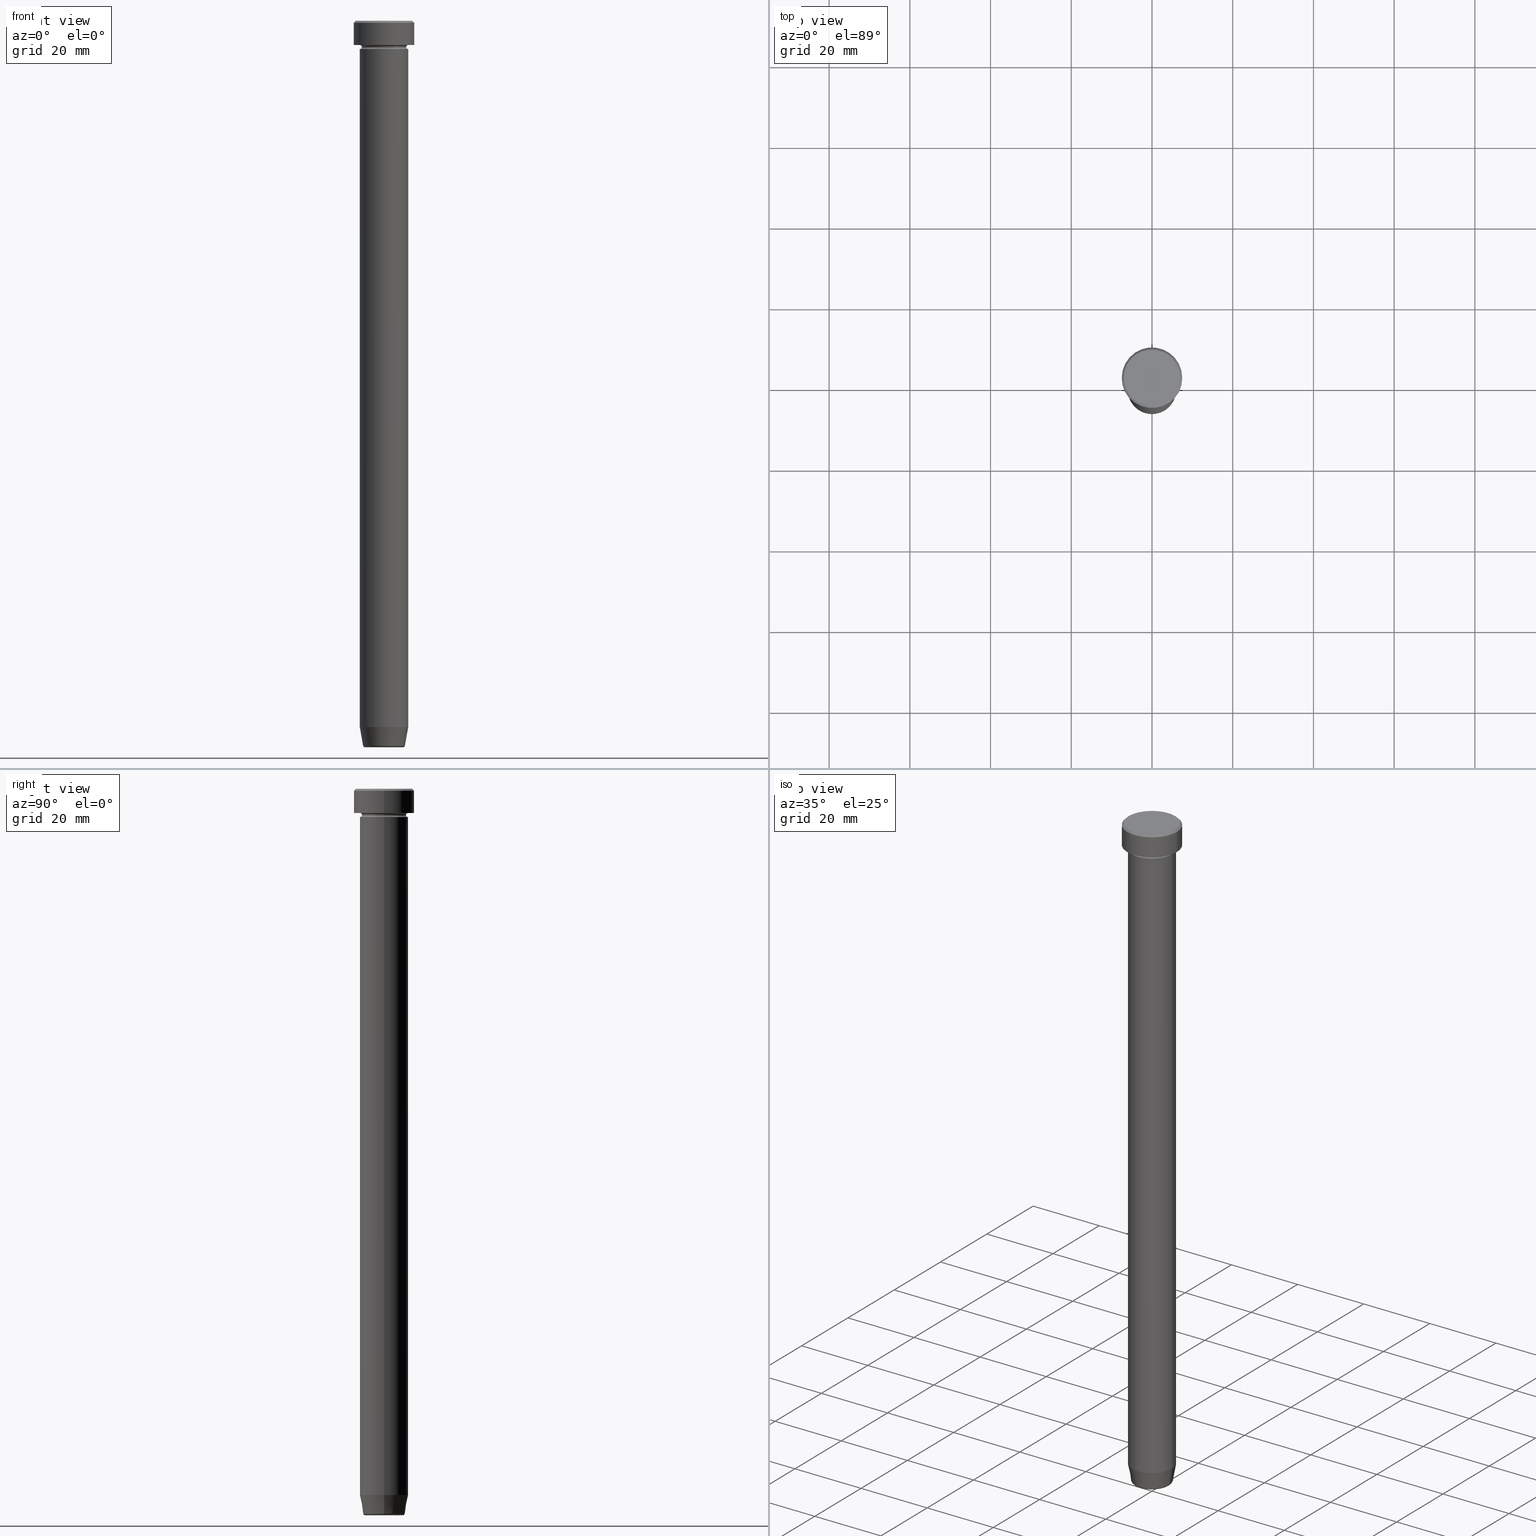
[diagram: canonical four-view strip — front | top / right | iso, engineering-drawing reading convention]
A machine part, canonical four-view strip (front | top / right | iso — engineering-drawing reading convention). The complete STEP part file that produces these views, byte-faithful:
ISO-10303-21;
HEADER;
FILE_DESCRIPTION (( 'STEP AP203' ),
    '1' );
FILE_NAME ('3bd2.STEP',
    '2024-01-02T23:21:57',
    ( '' ),
    ( '' ),
    'SwSTEP 2.0',
    'SolidWorks 2019',
    '' );
FILE_SCHEMA (( 'CONFIG_CONTROL_DESIGN' ));
ENDSEC;

DATA;
#1 = DIRECTION ( 'NONE',  ( -0.000000000000000000, -0.000000000000000000, 1.000000000000000000 ) ) ;
#2 = EDGE_CURVE ( 'NONE', #126, #315, #375, .T. ) ;
#3 = LINE ( 'NONE', #230, #365 ) ;
#4 = CIRCLE ( 'NONE', #185, 0.5000000000000004441 ) ;
#5 = CIRCLE ( 'NONE', #291, 0.5000000000000004441 ) ;
#6 = DESIGN_CONTEXT ( 'detailed design', #258, 'design' ) ;
#7 = EDGE_CURVE ( 'NONE', #586, #366, #269, .T. ) ;
#8 = DATE_AND_TIME ( #241, #360 ) ;
#9 = PLANE ( 'NONE',  #93 ) ;
#10 = CALENDAR_DATE ( 2024, 3, 1 ) ;
#11 = CIRCLE ( 'NONE', #522, 6.000000000000000000 ) ;
#12 = AXIS2_PLACEMENT_3D ( 'NONE', #530, #299, #489 ) ;
#13 = DIRECTION ( 'NONE',  ( 0.000000000000000000, -0.000000000000000000, 1.000000000000000000 ) ) ;
#14 = PERSON_AND_ORGANIZATION ( #302, #585 ) ;
#15 = APPROVAL_PERSON_ORGANIZATION ( #103, #143, #53 ) ;
#16 = ADVANCED_FACE ( 'NONE', ( #594, #117 ), #177, .T. ) ;
#17 = ORIENTED_EDGE ( 'NONE', *, *, #532, .T. ) ;
#18 = DIRECTION ( 'NONE',  ( -0.000000000000000000, -0.000000000000000000, 1.000000000000000000 ) ) ;
#19 = TOROIDAL_SURFACE ( 'NONE', #568, 6.000000000000000000, 0.5000000000000000000 ) ;
#20 = EDGE_LOOP ( 'NONE', ( #463, #416, #595, #207 ) ) ;
#21 = CARTESIAN_POINT ( 'NONE',  ( 0.000000000000000000, 0.000000000000000000, 0.000000000000000000 ) ) ;
#22 = ADVANCED_FACE ( 'NONE', ( #511 ), #329, .T. ) ;
#23 = DIRECTION ( 'NONE',  ( -1.000000000000000000, 0.000000000000000000, 0.000000000000000000 ) ) ;
#24 = LINE ( 'NONE', #316, #136 ) ;
#25 = CYLINDRICAL_SURFACE ( 'NONE', #313, 6.000000000000000000 ) ;
#26 = CARTESIAN_POINT ( 'NONE',  ( 0.000000000000000000, 0.000000000000000000, -179.5000000000000000 ) ) ;
#27 = VERTEX_POINT ( 'NONE', #234 ) ;
#28 = ORIENTED_EDGE ( 'NONE', *, *, #163, .F. ) ;
#29 = FACE_OUTER_BOUND ( 'NONE', #196, .T. ) ;
#30 = AXIS2_PLACEMENT_3D ( 'NONE', #105, #359, #345 ) ;
#31 = CARTESIAN_POINT ( 'NONE',  ( 7.000000000000001776, 8.572527594031474176E-16, 0.000000000000000000 ) ) ;
#32 = ORIENTED_EDGE ( 'NONE', *, *, #263, .T. ) ;
#33 = EDGE_LOOP ( 'NONE', ( #28, #311, #164, #599 ) ) ;
#34 = DIRECTION ( 'NONE',  ( 1.000000000000000000, 0.000000000000000000, 0.000000000000000000 ) ) ;
#35 = EDGE_CURVE ( 'NONE', #132, #66, #183, .T. ) ;
#36 = ORIENTED_EDGE ( 'NONE', *, *, #352, .F. ) ;
#37 = EDGE_LOOP ( 'NONE', ( #581, #81, #223, #134 ) ) ;
#38 =( GEOMETRIC_REPRESENTATION_CONTEXT ( 3 ) GLOBAL_UNCERTAINTY_ASSIGNED_CONTEXT ( ( #184 ) ) GLOBAL_UNIT_ASSIGNED_CONTEXT ( ( #491, #592, #461 ) ) REPRESENTATION_CONTEXT ( 'NONE', 'WORKASPACE' ) );
#39 = DIRECTION ( 'NONE',  ( 1.000000000000000000, 0.000000000000000000, 0.000000000000000000 ) ) ;
#40 = CC_DESIGN_PERSON_AND_ORGANIZATION_ASSIGNMENT ( #342, #138, ( #206 ) ) ;
#41 = ORIENTED_EDGE ( 'NONE', *, *, #346, .F. ) ;
#42 = EDGE_LOOP ( 'NONE', ( #32, #266, #128, #420 ) ) ;
#43 = CLOSED_SHELL ( 'NONE', ( #553, #156, #257, #496, #394, #417, #106, #306, #16, #488, #327, #447, #101 ) ) ;
#44 = AXIS2_PLACEMENT_3D ( 'NONE', #434, #471, #150 ) ;
#45 = ORIENTED_EDGE ( 'NONE', *, *, #263, .F. ) ;
#46 = DIRECTION ( 'NONE',  ( 1.000000000000000000, 0.000000000000000000, 0.000000000000000000 ) ) ;
#47 = ADVANCED_FACE ( 'NONE', ( #554 ), #211, .T. ) ;
#48 = VERTEX_POINT ( 'NONE', #383 ) ;
#49 = DIRECTION ( 'NONE',  ( 0.000000000000000000, -0.000000000000000000, 1.000000000000000000 ) ) ;
#50 = DIRECTION ( 'NONE',  ( -0.000000000000000000, -0.000000000000000000, 1.000000000000000000 ) ) ;
#51 = AXIS2_PLACEMENT_3D ( 'NONE', #165, #203, #118 ) ;
#52 = DIRECTION ( 'NONE',  ( 0.000000000000000000, 0.000000000000000000, -1.000000000000000000 ) ) ;
#53 = APPROVAL_ROLE ( '' ) ;
#54 = AXIS2_PLACEMENT_3D ( 'NONE', #131, #408, #168 ) ;
#55 = TOROIDAL_SURFACE ( 'NONE', #83, 6.000000000000000000, 0.5000000000000000000 ) ;
#56 = LINE ( 'NONE', #64, #469 ) ;
#57 = DATE_AND_TIME ( #60, #169 ) ;
#58 = ADVANCED_FACE ( 'NONE', ( #466 ), #431, .T. ) ;
#59 = DIRECTION ( 'NONE',  ( 1.000000000000000000, 0.000000000000000000, 0.000000000000000000 ) ) ;
#60 = CALENDAR_DATE ( 2024, 3, 1 ) ;
#61 = DIRECTION ( 'NONE',  ( 1.000000000000000000, 0.000000000000000000, 0.000000000000000000 ) ) ;
#62 = ORIENTED_EDGE ( 'NONE', *, *, #112, .F. ) ;
#63 = APPROVAL_STATUS ( 'not_yet_approved' ) ;
#64 = CARTESIAN_POINT ( 'NONE',  ( -6.000000000000000000, 7.347880794884119736E-16, 0.000000000000000000 ) ) ;
#65 = VECTOR ( 'NONE', #410, 999.9999999999998863 ) ;
#66 = VERTEX_POINT ( 'NONE', #137 ) ;
#67 = EDGE_CURVE ( 'NONE', #318, #217, #4, .T. ) ;
#68 = DIRECTION ( 'NONE',  ( -0.000000000000000000, -0.000000000000000000, 1.000000000000000000 ) ) ;
#69 = DIRECTION ( 'NONE',  ( -0.000000000000000000, -0.000000000000000000, 1.000000000000000000 ) ) ;
#70 = ORIENTED_EDGE ( 'NONE', *, *, #559, .T. ) ;
#71 = CARTESIAN_POINT ( 'NONE',  ( 0.000000000000000000, 0.000000000000000000, -0.4999999999999987232 ) ) ;
#72 = CC_DESIGN_APPROVAL ( #396, ( #206 ) ) ;
#73 = DIRECTION ( 'NONE',  ( -0.000000000000000000, -0.000000000000000000, 1.000000000000000000 ) ) ;
#74 = EDGE_CURVE ( 'NONE', #479, #217, #11, .T. ) ;
#75 = AXIS2_PLACEMENT_3D ( 'NONE', #21, #481, #446 ) ;
#76 = CARTESIAN_POINT ( 'NONE',  ( 6.000000000000000000, 7.347880794884119736E-16, -6.000000000000000000 ) ) ;
#77 = DIRECTION ( 'NONE',  ( 1.000000000000000000, 0.000000000000000000, 0.000000000000000000 ) ) ;
#78 = CARTESIAN_POINT ( 'NONE',  ( 0.000000000000000000, 0.000000000000000000, -17.00000000000000000 ) ) ;
#79 = CIRCLE ( 'NONE', #482, 7.000000000000001776 ) ;
#80 = CARTESIAN_POINT ( 'NONE',  ( 0.000000000000000000, 0.000000000000000000, -6.000000000000000000 ) ) ;
#81 = ORIENTED_EDGE ( 'NONE', *, *, #163, .T. ) ;
#82 = ORIENTED_EDGE ( 'NONE', *, *, #474, .F. ) ;
#83 = AXIS2_PLACEMENT_3D ( 'NONE', #367, #139, #289 ) ;
#84 = EDGE_CURVE ( 'NONE', #366, #479, #56, .T. ) ;
#85 = DIRECTION ( 'NONE',  ( -1.000000000000000000, 1.224646799147351482E-16, 0.000000000000000000 ) ) ;
#86 = EDGE_LOOP ( 'NONE', ( #419, #428, #441, #89 ) ) ;
#87 = CARTESIAN_POINT ( 'NONE',  ( 6.000000000000000000, 0.000000000000000000, 0.000000000000000000 ) ) ;
#88 = EDGE_LOOP ( 'NONE', ( #539, #235, #172, #173 ) ) ;
#89 = ORIENTED_EDGE ( 'NONE', *, *, #319, .F. ) ;
#90 = EDGE_CURVE ( 'NONE', #122, #318, #542, .T. ) ;
#91 = ORIENTED_EDGE ( 'NONE', *, *, #191, .T. ) ;
#92 = EDGE_LOOP ( 'NONE', ( #438, #181, #285, #580 ) ) ;
#93 = AXIS2_PLACEMENT_3D ( 'NONE', #252, #298, #144 ) ;
#94 = ORIENTED_EDGE ( 'NONE', *, *, #35, .T. ) ;
#95 = DIRECTION ( 'NONE',  ( 0.000000000000000000, -1.000000000000000000, 0.000000000000000000 ) ) ;
#96 = APPROVAL_DATE_TIME ( #57, #200 ) ;
#97 = DIRECTION ( 'NONE',  ( -0.000000000000000000, -0.000000000000000000, 1.000000000000000000 ) ) ;
#98 = CIRCLE ( 'NONE', #51, 5.500000000000000000 ) ;
#99 = DIRECTION ( 'NONE',  ( 1.000000000000000000, 0.000000000000000000, 0.000000000000000000 ) ) ;
#100 = DIRECTION ( 'NONE',  ( 1.000000000000000000, 0.000000000000000000, 0.000000000000000000 ) ) ;
#101 = ADVANCED_FACE ( 'NONE', ( #583 ), #271, .T. ) ;
#102 = AXIS2_PLACEMENT_3D ( 'NONE', #475, #262, #442 ) ;
#103 = PERSON_AND_ORGANIZATION ( #302, #585 ) ;
#104 = DIRECTION ( 'NONE',  ( -0.000000000000000000, -0.000000000000000000, 1.000000000000000000 ) ) ;
#105 = CARTESIAN_POINT ( 'NONE',  ( -6.000000000000000000, 7.347880794884119736E-16, -6.500000000000000888 ) ) ;
#106 = ADVANCED_FACE ( 'NONE', ( #162 ), #435, .T. ) ;
#107 = PERSON_AND_ORGANIZATION ( #302, #585 ) ;
#108 = VECTOR ( 'NONE', #425, 1000.000000000000114 ) ;
#109 = DIRECTION ( 'NONE',  ( -0.000000000000000000, -0.000000000000000000, 1.000000000000000000 ) ) ;
#110 = AXIS2_PLACEMENT_3D ( 'NONE', #80, #268, #398 ) ;
#111 = FACE_OUTER_BOUND ( 'NONE', #521, .T. ) ;
#112 = EDGE_CURVE ( 'NONE', #393, #48, #24, .T. ) ;
#113 = CARTESIAN_POINT ( 'NONE',  ( 0.000000000000000000, 0.000000000000000000, 0.000000000000000000 ) ) ;
#114 = AXIS2_PLACEMENT_3D ( 'NONE', #353, #256, #23 ) ;
#115 = CARTESIAN_POINT ( 'NONE',  ( 0.000000000000000000, 0.000000000000000000, -180.0000000000000000 ) ) ;
#116 = DIRECTION ( 'NONE',  ( 1.000000000000000000, 0.000000000000000000, 0.000000000000000000 ) ) ;
#117 = FACE_OUTER_BOUND ( 'NONE', #373, .T. ) ;
#118 = DIRECTION ( 'NONE',  ( 1.000000000000000000, 0.000000000000000000, 0.000000000000000000 ) ) ;
#119 = MANIFOLD_SOLID_BREP ( 'Zaoblit4', #401 ) ;
#120 = CARTESIAN_POINT ( 'NONE',  ( -5.191219157375138060, 6.852645359818000008E-16, -179.5868240888334526 ) ) ;
#121 = EDGE_CURVE ( 'NONE', #544, #538, #517, .T. ) ;
#122 = VERTEX_POINT ( 'NONE', #478 ) ;
#123 = DIRECTION ( 'NONE',  ( 1.000000000000000000, 0.000000000000000000, 0.000000000000000000 ) ) ;
#124 = DIRECTION ( 'NONE',  ( 1.224646799147353207E-16, 1.000000000000000000, 0.000000000000000000 ) ) ;
#125 = EDGE_LOOP ( 'NONE', ( #409, #500, #450, #253 ) ) ;
#126 = VERTEX_POINT ( 'NONE', #120 ) ;
#127 = PRODUCT ( '3bd2', '3bd2', '', ( #464 ) ) ;
#128 = ORIENTED_EDGE ( 'NONE', *, *, #209, .T. ) ;
#129 = CARTESIAN_POINT ( 'NONE',  ( -6.000000000000000000, 7.347880794884119736E-16, -175.0000000000000000 ) ) ;
#130 = EDGE_CURVE ( 'NONE', #366, #586, #331, .T. ) ;
#131 = CARTESIAN_POINT ( 'NONE',  ( 0.000000000000000000, 0.000000000000000000, -179.5868240888334526 ) ) ;
#132 = VERTEX_POINT ( 'NONE', #492 ) ;
#133 = CARTESIAN_POINT ( 'NONE',  ( 6.000000000000000000, 0.000000000000000000, -6.500000000000000888 ) ) ;
#134 = ORIENTED_EDGE ( 'NONE', *, *, #67, .F. ) ;
#135 = DIRECTION ( 'NONE',  ( -0.000000000000000000, -0.000000000000000000, 1.000000000000000000 ) ) ;
#136 = VECTOR ( 'NONE', #265, 1000.000000000000000 ) ;
#137 = CARTESIAN_POINT ( 'NONE',  ( -7.500000000000000000, 9.184850993605147944E-16, -0.4999999999999987232 ) ) ;
#138 = PERSON_AND_ORGANIZATION_ROLE ( 'design_supplier' ) ;
#139 = DIRECTION ( 'NONE',  ( -0.000000000000000000, -0.000000000000000000, 1.000000000000000000 ) ) ;
#140 = EDGE_CURVE ( 'NONE', #324, #48, #529, .T. ) ;
#141 = LOCAL_TIME ( 0, 21, 57.00000000000000000, #238 ) ;
#142 = COORDINATED_UNIVERSAL_TIME_OFFSET ( 1, 0, .AHEAD. ) ;
#143 = APPROVAL ( #194, 'NEUR�EN�' ) ;
#144 = DIRECTION ( 'NONE',  ( -1.000000000000000000, 0.000000000000000000, -0.000000000000000000 ) ) ;
#145 = CIRCLE ( 'NONE', #192, 0.5000000000000004441 ) ;
#146 = APPROVAL_STATUS ( 'not_yet_approved' ) ;
#147 = EDGE_CURVE ( 'NONE', #460, #212, #415, .T. ) ;
#148 = DIRECTION ( 'NONE',  ( -1.000000000000000000, 0.000000000000000000, 0.000000000000000000 ) ) ;
#149 = CALENDAR_DATE ( 2024, 3, 1 ) ;
#150 = DIRECTION ( 'NONE',  ( 1.000000000000000000, 0.000000000000000000, 0.000000000000000000 ) ) ;
#151 = LOCAL_TIME ( 0, 21, 57.00000000000000000, #142 ) ;
#152 = DIRECTION ( 'NONE',  ( 1.000000000000000000, 0.000000000000000000, 0.000000000000000000 ) ) ;
#153 = AXIS2_PLACEMENT_3D ( 'NONE', #560, #193, #550 ) ;
#154 = AXIS2_PLACEMENT_3D ( 'NONE', #578, #444, #34 ) ;
#155 = ORIENTED_EDGE ( 'NONE', *, *, #147, .F. ) ;
#156 = ADVANCED_FACE ( 'NONE', ( #574 ), #543, .F. ) ;
#157 = FACE_OUTER_BOUND ( 'NONE', #490, .T. ) ;
#158 = CARTESIAN_POINT ( 'NONE',  ( 7.000000000000001776, 8.878689293818310074E-16, 0.000000000000000000 ) ) ;
#159 = DIRECTION ( 'NONE',  ( 0.000000000000000000, 0.000000000000000000, -1.000000000000000000 ) ) ;
#160 = CIRCLE ( 'NONE', #340, 5.191219157375138060 ) ;
#161 = CARTESIAN_POINT ( 'NONE',  ( 0.000000000000000000, 0.000000000000000000, -17.00000000000000000 ) ) ;
#162 = FACE_OUTER_BOUND ( 'NONE', #349, .T. ) ;
#163 = EDGE_CURVE ( 'NONE', #122, #479, #239, .T. ) ;
#164 = ORIENTED_EDGE ( 'NONE', *, *, #67, .T. ) ;
#165 = CARTESIAN_POINT ( 'NONE',  ( 0.000000000000000000, 0.000000000000000000, -6.500000000000000888 ) ) ;
#166 = CARTESIAN_POINT ( 'NONE',  ( -7.500000000000000000, 9.184850993605147944E-16, 0.000000000000000000 ) ) ;
#167 = AXIS2_PLACEMENT_3D ( 'NONE', #113, #528, #486 ) ;
#168 = DIRECTION ( 'NONE',  ( -1.000000000000000000, 0.000000000000000000, 0.000000000000000000 ) ) ;
#169 = LOCAL_TIME ( 0, 21, 57.00000000000000000, #513 ) ;
#170 = DIRECTION ( 'NONE',  ( 1.000000000000000000, 0.000000000000000000, 0.000000000000000000 ) ) ;
#171 = LINE ( 'NONE', #186, #65 ) ;
#172 = ORIENTED_EDGE ( 'NONE', *, *, #483, .T. ) ;
#173 = ORIENTED_EDGE ( 'NONE', *, *, #433, .T. ) ;
#174 = EDGE_CURVE ( 'NONE', #314, #126, #5, .T. ) ;
#175 = VECTOR ( 'NONE', #219, 999.9999999999998863 ) ;
#176 = CARTESIAN_POINT ( 'NONE',  ( 5.191219157375138060, 0.000000000000000000, -179.5868240888334526 ) ) ;
#177 = PLANE ( 'NONE',  #279 ) ;
#178 = ORIENTED_EDGE ( 'NONE', *, *, #474, .T. ) ;
#179 = DIRECTION ( 'NONE',  ( 0.000000000000000000, 0.000000000000000000, -1.000000000000000000 ) ) ;
#180 = ORIENTED_EDGE ( 'NONE', *, *, #407, .F. ) ;
#181 = ORIENTED_EDGE ( 'NONE', *, *, #121, .T. ) ;
#182 = FACE_OUTER_BOUND ( 'NONE', #33, .T. ) ;
#183 = LINE ( 'NONE', #472, #108 ) ;
#184 = UNCERTAINTY_MEASURE_WITH_UNIT (LENGTH_MEASURE( 1.000000000000000082E-05 ), #491, 'distance_accuracy_value', 'NONE');
#185 = AXIS2_PLACEMENT_3D ( 'NONE', #133, #334, #52 ) ;
#186 = CARTESIAN_POINT ( 'NONE',  ( -5.118365096457672792, 6.268189432244423169E-16, -180.0000000000000000 ) ) ;
#187 = CIRCLE ( 'NONE', #392, 7.500000000000000000 ) ;
#188 = CC_DESIGN_PERSON_AND_ORGANIZATION_ASSIGNMENT ( #224, #228, ( #127 ) ) ;
#189 = CARTESIAN_POINT ( 'NONE',  ( 0.000000000000000000, 0.000000000000000000, -7.000000000000000000 ) ) ;
#190 = DATE_TIME_ROLE ( 'creation_date' ) ;
#191 = EDGE_CURVE ( 'NONE', #534, #314, #470, .T. ) ;
#192 = AXIS2_PLACEMENT_3D ( 'NONE', #597, #288, #179 ) ;
#193 = DIRECTION ( 'NONE',  ( -0.000000000000000000, -0.000000000000000000, 1.000000000000000000 ) ) ;
#194 = APPROVAL_STATUS ( 'not_yet_approved' ) ;
#195 = DIRECTION ( 'NONE',  ( -0.000000000000000000, -0.000000000000000000, 1.000000000000000000 ) ) ;
#196 = EDGE_LOOP ( 'NONE', ( #300, #214, #36, #404 ) ) ;
#197 = APPLICATION_PROTOCOL_DEFINITION ( 'international standard', 'config_control_design', 1994, #258 ) ;
#198 = DIRECTION ( 'NONE',  ( -0.000000000000000000, -0.000000000000000000, 1.000000000000000000 ) ) ;
#199 = AXIS2_PLACEMENT_3D ( 'NONE', #354, #537, #520 ) ;
#200 = APPROVAL ( #63, 'NEUR�EN�' ) ;
#201 = ORIENTED_EDGE ( 'NONE', *, *, #371, .F. ) ;
#202 = ORIENTED_EDGE ( 'NONE', *, *, #515, .T. ) ;
#203 = DIRECTION ( 'NONE',  ( -0.000000000000000000, -0.000000000000000000, 1.000000000000000000 ) ) ;
#204 = DIRECTION ( 'NONE',  ( -0.000000000000000000, -0.000000000000000000, 1.000000000000000000 ) ) ;
#205 = CARTESIAN_POINT ( 'NONE',  ( 0.000000000000000000, 0.000000000000000000, 0.000000000000000000 ) ) ;
#206 = PRODUCT_DEFINITION_FORMATION_WITH_SPECIFIED_SOURCE ( 'LIBOVOLN�', '', #127, .NOT_KNOWN. ) ;
#207 = ORIENTED_EDGE ( 'NONE', *, *, #292, .F. ) ;
#208 = CARTESIAN_POINT ( 'NONE',  ( 7.500000000000000000, 0.000000000000000000, -6.000000000000000000 ) ) ;
#209 = EDGE_CURVE ( 'NONE', #66, #538, #385, .T. ) ;
#210 = CARTESIAN_POINT ( 'NONE',  ( -6.000000000000000000, 0.000000000000000000, -6.000000000000000000 ) ) ;
#211 = CONICAL_SURFACE ( 'NONE', #551, 5.118365096457672792, 0.1745329251994331976 ) ;
#212 = VERTEX_POINT ( 'NONE', #210 ) ;
#213 = AXIS2_PLACEMENT_3D ( 'NONE', #388, #159, #565 ) ;
#214 = ORIENTED_EDGE ( 'NONE', *, *, #275, .T. ) ;
#215 = DIRECTION ( 'NONE',  ( -1.000000000000000000, 0.000000000000000000, 0.000000000000000000 ) ) ;
#216 = ORIENTED_EDGE ( 'NONE', *, *, #433, .F. ) ;
#217 = VERTEX_POINT ( 'NONE', #448 ) ;
#218 = CARTESIAN_POINT ( 'NONE',  ( 6.000000000000000000, 0.000000000000000000, -17.00000000000000000 ) ) ;
#219 = DIRECTION ( 'NONE',  ( 0.1736481776669306087, 0.000000000000000000, 0.9848077530122081313 ) ) ;
#220 = CIRCLE ( 'NONE', #437, 0.5000000000000004441 ) ;
#221 = ADVANCED_FACE ( 'NONE', ( #310 ), #501, .T. ) ;
#222 = ORIENTED_EDGE ( 'NONE', *, *, #362, .T. ) ;
#223 = ORIENTED_EDGE ( 'NONE', *, *, #74, .T. ) ;
#224 = PERSON_AND_ORGANIZATION ( #302, #585 ) ;
#225 = DIRECTION ( 'NONE',  ( -0.000000000000000000, -0.000000000000000000, 1.000000000000000000 ) ) ;
#226 = DIRECTION ( 'NONE',  ( -0.000000000000000000, -0.000000000000000000, 1.000000000000000000 ) ) ;
#227 = ORIENTED_EDGE ( 'NONE', *, *, #2, .T. ) ;
#228 = PERSON_AND_ORGANIZATION_ROLE ( 'design_owner' ) ;
#229 = AXIS2_PLACEMENT_3D ( 'NONE', #26, #69, #406 ) ;
#230 = CARTESIAN_POINT ( 'NONE',  ( 6.000000000000000000, 0.000000000000000000, 0.000000000000000000 ) ) ;
#231 = ORIENTED_EDGE ( 'NONE', *, *, #7, .F. ) ;
#232 = CARTESIAN_POINT ( 'NONE',  ( -7.500000000000000000, 9.184850993605147944E-16, -6.000000000000000000 ) ) ;
#233 = CARTESIAN_POINT ( 'NONE',  ( 6.000000000000000000, 0.000000000000000000, -17.00000000000000000 ) ) ;
#234 = CARTESIAN_POINT ( 'NONE',  ( 6.000000000000000000, 0.000000000000000000, -175.0000000000000000 ) ) ;
#235 = ORIENTED_EDGE ( 'NONE', *, *, #407, .T. ) ;
#236 = DIRECTION ( 'NONE',  ( 1.000000000000000000, 0.000000000000000000, 0.000000000000000000 ) ) ;
#237 = EDGE_CURVE ( 'NONE', #567, #66, #386, .T. ) ;
#238 = COORDINATED_UNIVERSAL_TIME_OFFSET ( 1, 0, .AHEAD. ) ;
#239 = CIRCLE ( 'NONE', #30, 0.5000000000000004441 ) ;
#240 = PRODUCT_RELATED_PRODUCT_CATEGORY ( 'detail', '', ( #127 ) ) ;
#241 = CALENDAR_DATE ( 2024, 3, 1 ) ;
#242 = DIRECTION ( 'NONE',  ( -0.000000000000000000, -0.000000000000000000, 1.000000000000000000 ) ) ;
#243 = ADVANCED_FACE ( 'NONE', ( #562 ), #296, .F. ) ;
#244 = CARTESIAN_POINT ( 'NONE',  ( 0.000000000000000000, 0.000000000000000000, -180.0000000000000000 ) ) ;
#245 = SECURITY_CLASSIFICATION_LEVEL ( 'unclassified' ) ;
#246 = CC_DESIGN_PERSON_AND_ORGANIZATION_ASSIGNMENT ( #518, #504, ( #206 ) ) ;
#247 = CARTESIAN_POINT ( 'NONE',  ( 0.000000000000000000, 0.000000000000000000, 0.000000000000000000 ) ) ;
#248 = CIRCLE ( 'NONE', #75, 7.000000000000001776 ) ;
#249 = CARTESIAN_POINT ( 'NONE',  ( 0.000000000000000000, 0.000000000000000000, -6.500000000000000888 ) ) ;
#250 = ORIENTED_EDGE ( 'NONE', *, *, #130, .F. ) ;
#251 = DATE_AND_TIME ( #149, #372 ) ;
#252 = CARTESIAN_POINT ( 'NONE',  ( 0.000000000000000000, 6.000000000000000000, -17.00000000000000000 ) ) ;
#253 = ORIENTED_EDGE ( 'NONE', *, *, #2, .F. ) ;
#254 = APPROVAL_PERSON_ORGANIZATION ( #378, #200, #335 ) ;
#255 = ORIENTED_EDGE ( 'NONE', *, *, #573, .T. ) ;
#256 = DIRECTION ( 'NONE',  ( 0.000000000000000000, 0.000000000000000000, -1.000000000000000000 ) ) ;
#257 = ADVANCED_FACE ( 'NONE', ( #320 ), #19, .F. ) ;
#258 = APPLICATION_CONTEXT ( 'configuration controlled 3d designs of mechanical parts and assemblies' ) ;
#259 = FACE_OUTER_BOUND ( 'NONE', #92, .T. ) ;
#260 = AXIS2_PLACEMENT_3D ( 'NONE', #274, #225, #545 ) ;
#261 = DIRECTION ( 'NONE',  ( 1.000000000000000000, 0.000000000000000000, 0.000000000000000000 ) ) ;
#262 = DIRECTION ( 'NONE',  ( 0.000000000000000000, 0.000000000000000000, -1.000000000000000000 ) ) ;
#263 = EDGE_CURVE ( 'NONE', #452, #567, #477, .T. ) ;
#264 = DIRECTION ( 'NONE',  ( 1.000000000000000000, 0.000000000000000000, 0.000000000000000000 ) ) ;
#265 = DIRECTION ( 'NONE',  ( -0.000000000000000000, -0.000000000000000000, 1.000000000000000000 ) ) ;
#266 = ORIENTED_EDGE ( 'NONE', *, *, #237, .T. ) ;
#267 = DIRECTION ( 'NONE',  ( 0.000000000000000000, 0.000000000000000000, -1.000000000000000000 ) ) ;
#268 = DIRECTION ( 'NONE',  ( -0.000000000000000000, -0.000000000000000000, 1.000000000000000000 ) ) ;
#269 = CIRCLE ( 'NONE', #476, 6.000000000000000000 ) ;
#270 = ORIENTED_EDGE ( 'NONE', *, *, #387, .T. ) ;
#271 = CONICAL_SURFACE ( 'NONE', #432, 7.000000000000001776, 0.7853981633974473908 ) ;
#272 = CARTESIAN_POINT ( 'NONE',  ( 0.000000000000000000, 0.000000000000000000, 0.000000000000000000 ) ) ;
#273 = EDGE_LOOP ( 'NONE', ( #563, #524, #94, #216 ) ) ;
#274 = CARTESIAN_POINT ( 'NONE',  ( 0.000000000000000000, 0.000000000000000000, -6.000000000000000000 ) ) ;
#275 = EDGE_CURVE ( 'NONE', #126, #393, #171, .T. ) ;
#276 = ORIENTED_EDGE ( 'NONE', *, *, #275, .F. ) ;
#277 = CARTESIAN_POINT ( 'NONE',  ( 0.000000000000000000, 0.000000000000000000, -6.000000000000000000 ) ) ;
#278 = ORIENTED_EDGE ( 'NONE', *, *, #292, .T. ) ;
#279 = AXIS2_PLACEMENT_3D ( 'NONE', #598, #368, #546 ) ;
#280 = ORIENTED_EDGE ( 'NONE', *, *, #130, .T. ) ;
#281 = CIRCLE ( 'NONE', #44, 7.500000000000000000 ) ;
#282 = DIRECTION ( 'NONE',  ( -1.000000000000000000, -1.224646799147351482E-16, 0.000000000000000000 ) ) ;
#283 = DIRECTION ( 'NONE',  ( -0.000000000000000000, -0.000000000000000000, 1.000000000000000000 ) ) ;
#284 = CONICAL_SURFACE ( 'NONE', #514, 5.118365096457672792, 0.1745329251994331976 ) ;
#285 = ORIENTED_EDGE ( 'NONE', *, *, #209, .F. ) ;
#286 = CARTESIAN_POINT ( 'NONE',  ( 0.000000000000000000, 1.592040838891559450E-14, -180.0000000000000000 ) ) ;
#287 = EDGE_CURVE ( 'NONE', #217, #479, #561, .T. ) ;
#288 = DIRECTION ( 'NONE',  ( -0.000000000000000000, -1.000000000000000000, -0.000000000000000000 ) ) ;
#289 = DIRECTION ( 'NONE',  ( 1.000000000000000000, 0.000000000000000000, 0.000000000000000000 ) ) ;
#290 = AXIS2_PLACEMENT_3D ( 'NONE', #249, #356, #343 ) ;
#291 = AXIS2_PLACEMENT_3D ( 'NONE', #400, #124, #85 ) ;
#292 = EDGE_CURVE ( 'NONE', #586, #217, #3, .T. ) ;
#293 = CARTESIAN_POINT ( 'NONE',  ( 0.000000000000000000, 0.000000000000000000, -179.5000000000000000 ) ) ;
#294 = CALENDAR_DATE ( 2024, 3, 1 ) ;
#295 = CC_DESIGN_APPROVAL ( #143, ( #422 ) ) ;
#296 = PLANE ( 'NONE',  #102 ) ;
#297 = SHAPE_DEFINITION_REPRESENTATION ( #423, #509 ) ;
#298 = DIRECTION ( 'NONE',  ( 0.000000000000000000, 0.000000000000000000, -1.000000000000000000 ) ) ;
#299 = DIRECTION ( 'NONE',  ( 0.000000000000000000, 0.000000000000000000, -1.000000000000000000 ) ) ;
#300 = ORIENTED_EDGE ( 'NONE', *, *, #427, .T. ) ;
#301 = EDGE_CURVE ( 'NONE', #122, #212, #145, .T. ) ;
#302 = PERSON ( 'NEUR�EN�', 'NEUR�EN�', 'NEUR�EN�', ('NEUR�EN�'), ('NEUR�EN�'), ('NEUR�EN�') ) ;
#303 = DIRECTION ( 'NONE',  ( 0.000000000000000000, 0.000000000000000000, -1.000000000000000000 ) ) ;
#304 = AXIS2_PLACEMENT_3D ( 'NONE', #391, #569, #77 ) ;
#305 = LINE ( 'NONE', #571, #348 ) ;
#306 = ADVANCED_FACE ( 'NONE', ( #370 ), #462, .T. ) ;
#307 = CIRCLE ( 'NONE', #260, 6.000000000000000000 ) ;
#308 = EDGE_LOOP ( 'NONE', ( #62, #323, #369, #82 ) ) ;
#309 = CYLINDRICAL_SURFACE ( 'NONE', #557, 6.000000000000000000 ) ;
#310 = FACE_OUTER_BOUND ( 'NONE', #86, .T. ) ;
#311 = ORIENTED_EDGE ( 'NONE', *, *, #532, .F. ) ;
#312 = CARTESIAN_POINT ( 'NONE',  ( 7.500000000000000000, 0.000000000000000000, -0.4999999999999987232 ) ) ;
#313 = AXIS2_PLACEMENT_3D ( 'NONE', #395, #198, #405 ) ;
#314 = VERTEX_POINT ( 'NONE', #374 ) ;
#315 = VERTEX_POINT ( 'NONE', #176 ) ;
#316 = CARTESIAN_POINT ( 'NONE',  ( -6.000000000000000000, 7.347880794884119736E-16, 0.000000000000000000 ) ) ;
#317 = AXIS2_PLACEMENT_3D ( 'NONE', #205, #13, #116 ) ;
#318 = VERTEX_POINT ( 'NONE', #555 ) ;
#319 = EDGE_CURVE ( 'NONE', #534, #315, #484, .T. ) ;
#320 = FACE_OUTER_BOUND ( 'NONE', #37, .T. ) ;
#321 = EDGE_LOOP ( 'NONE', ( #276, #227, #222, #41 ) ) ;
#322 = FACE_OUTER_BOUND ( 'NONE', #42, .T. ) ;
#323 = ORIENTED_EDGE ( 'NONE', *, *, #346, .T. ) ;
#324 = VERTEX_POINT ( 'NONE', #233 ) ;
#325 = PLANE ( 'NONE',  #480 ) ;
#326 = DIRECTION ( 'NONE',  ( 0.000000000000000000, 0.000000000000000000, -1.000000000000000000 ) ) ;
#327 = ADVANCED_FACE ( 'NONE', ( #182 ), #55, .F. ) ;
#328 = DIRECTION ( 'NONE',  ( -0.000000000000000000, -0.000000000000000000, 1.000000000000000000 ) ) ;
#329 = TOROIDAL_SURFACE ( 'NONE', #384, 4.698815280869035327, 0.5000000000000000000 ) ;
#330 = EDGE_LOOP ( 'NONE', ( #390, #498, #497, #201 ) ) ;
#331 = CIRCLE ( 'NONE', #593, 6.000000000000000000 ) ;
#332 = DIRECTION ( 'NONE',  ( -0.000000000000000000, -0.000000000000000000, 1.000000000000000000 ) ) ;
#333 = MANIFOLD_SOLID_BREP ( 'Zkosen�1', #43 ) ;
#334 = DIRECTION ( 'NONE',  ( 0.000000000000000000, -1.000000000000000000, 0.000000000000000000 ) ) ;
#335 = APPROVAL_ROLE ( '' ) ;
#336 = DIRECTION ( 'NONE',  ( 1.000000000000000000, 0.000000000000000000, 0.000000000000000000 ) ) ;
#337 = DATE_AND_TIME ( #10, #151 ) ;
#338 = CONICAL_SURFACE ( 'NONE', #167, 7.000000000000001776, 0.7853981633974473908 ) ;
#339 = CARTESIAN_POINT ( 'NONE',  ( 0.000000000000000000, 0.000000000000000000, -179.5868240888334526 ) ) ;
#340 = AXIS2_PLACEMENT_3D ( 'NONE', #339, #68, #215 ) ;
#341 = CC_DESIGN_DATE_AND_TIME_ASSIGNMENT ( #8, #510, ( #422 ) ) ;
#342 = PERSON_AND_ORGANIZATION ( #302, #585 ) ;
#343 = DIRECTION ( 'NONE',  ( 1.000000000000000000, 0.000000000000000000, 0.000000000000000000 ) ) ;
#344 = COORDINATED_UNIVERSAL_TIME_OFFSET ( 1, 0, .AHEAD. ) ;
#345 = DIRECTION ( 'NONE',  ( -1.000000000000000000, 1.224646799147351482E-16, 0.000000000000000000 ) ) ;
#346 = EDGE_CURVE ( 'NONE', #393, #27, #531, .T. ) ;
#347 = AXIS2_PLACEMENT_3D ( 'NONE', #418, #1, #424 ) ;
#348 = VECTOR ( 'NONE', #436, 1000.000000000000000 ) ;
#349 = EDGE_LOOP ( 'NONE', ( #412, #202 ) ) ;
#350 = DIRECTION ( 'NONE',  ( 1.000000000000000000, 0.000000000000000000, 0.000000000000000000 ) ) ;
#351 = FACE_OUTER_BOUND ( 'NONE', #485, .T. ) ;
#352 = EDGE_CURVE ( 'NONE', #27, #393, #355, .T. ) ;
#353 = CARTESIAN_POINT ( 'NONE',  ( 0.000000000000000000, 0.000000000000000000, -6.500000000000000888 ) ) ;
#354 = CARTESIAN_POINT ( 'NONE',  ( 0.000000000000000000, 0.000000000000000000, -17.00000000000000000 ) ) ;
#355 = CIRCLE ( 'NONE', #523, 6.000000000000000000 ) ;
#356 = DIRECTION ( 'NONE',  ( -0.000000000000000000, -0.000000000000000000, 1.000000000000000000 ) ) ;
#357 = EDGE_LOOP ( 'NONE', ( #270, #547 ) ) ;
#358 = CYLINDRICAL_SURFACE ( 'NONE', #304, 6.000000000000000000 ) ;
#359 = DIRECTION ( 'NONE',  ( 1.224646799147353207E-16, 1.000000000000000000, 0.000000000000000000 ) ) ;
#360 = LOCAL_TIME ( 0, 21, 57.00000000000000000, #429 ) ;
#361 = CARTESIAN_POINT ( 'NONE',  ( 0.000000000000000000, 0.000000000000000000, -17.00000000000000000 ) ) ;
#362 = EDGE_CURVE ( 'NONE', #315, #27, #506, .T. ) ;
#363 = ORIENTED_EDGE ( 'NONE', *, *, #301, .F. ) ;
#364 = DIRECTION ( 'NONE',  ( 1.000000000000000000, 0.000000000000000000, 0.000000000000000000 ) ) ;
#365 = VECTOR ( 'NONE', #97, 1000.000000000000000 ) ;
#366 = VERTEX_POINT ( 'NONE', #541 ) ;
#367 = CARTESIAN_POINT ( 'NONE',  ( 0.000000000000000000, 0.000000000000000000, -6.500000000000000888 ) ) ;
#368 = DIRECTION ( 'NONE',  ( 0.000000000000000000, 0.000000000000000000, -1.000000000000000000 ) ) ;
#369 = ORIENTED_EDGE ( 'NONE', *, *, #371, .T. ) ;
#370 = FACE_OUTER_BOUND ( 'NONE', #88, .T. ) ;
#371 = EDGE_CURVE ( 'NONE', #27, #324, #454, .T. ) ;
#372 = LOCAL_TIME ( 0, 21, 57.00000000000000000, #344 ) ;
#373 = EDGE_LOOP ( 'NONE', ( #45, #180 ) ) ;
#374 = CARTESIAN_POINT ( 'NONE',  ( -4.698815280869035327, 6.055899509126411236E-16, -180.0000000000000000 ) ) ;
#375 = CIRCLE ( 'NONE', #54, 5.191219157375138060 ) ;
#376 = TOROIDAL_SURFACE ( 'NONE', #114, 6.000000000000000000, 0.5000000000000000000 ) ;
#377 = DIRECTION ( 'NONE',  ( 1.000000000000000000, 0.000000000000000000, 0.000000000000000000 ) ) ;
#378 = PERSON_AND_ORGANIZATION ( #302, #585 ) ;
#379 = EDGE_LOOP ( 'NONE', ( #231, #250 ) ) ;
#380 = DATE_AND_TIME ( #294, #141 ) ;
#381 = CC_DESIGN_DATE_AND_TIME_ASSIGNMENT ( #337, #190, ( #525 ) ) ;
#382 = APPROVAL_PERSON_ORGANIZATION ( #389, #396, #564 ) ;
#383 = CARTESIAN_POINT ( 'NONE',  ( -6.000000000000000000, 7.347880794884119736E-16, -17.00000000000000000 ) ) ;
#384 = AXIS2_PLACEMENT_3D ( 'NONE', #293, #328, #61 ) ;
#385 = CIRCLE ( 'NONE', #12, 7.500000000000000000 ) ;
#386 = LINE ( 'NONE', #166, #459 ) ;
#387 = EDGE_CURVE ( 'NONE', #212, #460, #307, .T. ) ;
#388 = CARTESIAN_POINT ( 'NONE',  ( 0.000000000000000000, 0.000000000000000000, -6.500000000000000888 ) ) ;
#389 = PERSON_AND_ORGANIZATION ( #302, #585 ) ;
#390 = ORIENTED_EDGE ( 'NONE', *, *, #352, .T. ) ;
#391 = CARTESIAN_POINT ( 'NONE',  ( 0.000000000000000000, 0.000000000000000000, 0.000000000000000000 ) ) ;
#392 = AXIS2_PLACEMENT_3D ( 'NONE', #71, #267, #261 ) ;
#393 = VERTEX_POINT ( 'NONE', #129 ) ;
#394 = ADVANCED_FACE ( 'NONE', ( #322 ), #499, .T. ) ;
#395 = CARTESIAN_POINT ( 'NONE',  ( 0.000000000000000000, 0.000000000000000000, 0.000000000000000000 ) ) ;
#396 = APPROVAL ( #146, 'NEUR�EN�' ) ;
#397 = FACE_OUTER_BOUND ( 'NONE', #20, .T. ) ;
#398 = DIRECTION ( 'NONE',  ( -1.000000000000000000, 0.000000000000000000, 0.000000000000000000 ) ) ;
#399 = DIRECTION ( 'NONE',  ( 1.000000000000000000, 0.000000000000000000, 0.000000000000000000 ) ) ;
#400 = CARTESIAN_POINT ( 'NONE',  ( -4.698815280869035327, 5.754389093500935290E-16, -179.5000000000000000 ) ) ;
#401 = CLOSED_SHELL ( 'NONE', ( #221, #468, #505, #243, #58, #47, #566, #22 ) ) ;
#402 = AXIS2_PLACEMENT_3D ( 'NONE', #247, #104, #100 ) ;
#403 = AXIS2_PLACEMENT_3D ( 'NONE', #161, #204, #123 ) ;
#404 = ORIENTED_EDGE ( 'NONE', *, *, #362, .F. ) ;
#405 = DIRECTION ( 'NONE',  ( 1.000000000000000000, 0.000000000000000000, 0.000000000000000000 ) ) ;
#406 = DIRECTION ( 'NONE',  ( 1.000000000000000000, 0.000000000000000000, 0.000000000000000000 ) ) ;
#407 = EDGE_CURVE ( 'NONE', #567, #452, #281, .T. ) ;
#408 = DIRECTION ( 'NONE',  ( -0.000000000000000000, -0.000000000000000000, 1.000000000000000000 ) ) ;
#409 = ORIENTED_EDGE ( 'NONE', *, *, #174, .F. ) ;
#410 = DIRECTION ( 'NONE',  ( -0.1736481776669306087, 2.126576849575774688E-17, 0.9848077530122081313 ) ) ;
#411 = CC_DESIGN_SECURITY_CLASSIFICATION ( #422, ( #206 ) ) ;
#412 = ORIENTED_EDGE ( 'NONE', *, *, #455, .T. ) ;
#413 = DIRECTION ( 'NONE',  ( -0.000000000000000000, -0.000000000000000000, 1.000000000000000000 ) ) ;
#414 = DIRECTION ( 'NONE',  ( 1.000000000000000000, 0.000000000000000000, 0.000000000000000000 ) ) ;
#415 = CIRCLE ( 'NONE', #110, 6.000000000000000000 ) ;
#416 = ORIENTED_EDGE ( 'NONE', *, *, #84, .T. ) ;
#417 = ADVANCED_FACE ( 'NONE', ( #430 ), #9, .T. ) ;
#418 = CARTESIAN_POINT ( 'NONE',  ( 0.000000000000000000, 0.000000000000000000, -7.000000000000000000 ) ) ;
#419 = ORIENTED_EDGE ( 'NONE', *, *, #559, .F. ) ;
#420 = ORIENTED_EDGE ( 'NONE', *, *, #483, .F. ) ;
#421 = CARTESIAN_POINT ( 'NONE',  ( 0.000000000000000000, 0.000000000000000000, -6.500000000000000888 ) ) ;
#422 = SECURITY_CLASSIFICATION ( '', '', #245 ) ;
#423 = PRODUCT_DEFINITION_SHAPE ( 'NONE', 'NONE',  #525 ) ;
#424 = DIRECTION ( 'NONE',  ( 1.000000000000000000, 0.000000000000000000, 0.000000000000000000 ) ) ;
#425 = DIRECTION ( 'NONE',  ( -0.7071067811865469066, 0.000000000000000000, -0.7071067811865481278 ) ) ;
#426 = VECTOR ( 'NONE', #413, 1000.000000000000000 ) ;
#427 = EDGE_CURVE ( 'NONE', #315, #126, #160, .T. ) ;
#428 = ORIENTED_EDGE ( 'NONE', *, *, #174, .T. ) ;
#429 = COORDINATED_UNIVERSAL_TIME_OFFSET ( 1, 0, .AHEAD. ) ;
#430 = FACE_OUTER_BOUND ( 'NONE', #379, .T. ) ;
#431 = CYLINDRICAL_SURFACE ( 'NONE', #153, 6.000000000000000000 ) ;
#432 = AXIS2_PLACEMENT_3D ( 'NONE', #272, #451, #148 ) ;
#433 = EDGE_CURVE ( 'NONE', #538, #66, #187, .T. ) ;
#434 = CARTESIAN_POINT ( 'NONE',  ( 0.000000000000000000, 0.000000000000000000, -6.000000000000000000 ) ) ;
#435 = PLANE ( 'NONE',  #317 ) ;
#436 = DIRECTION ( 'NONE',  ( -0.000000000000000000, -0.000000000000000000, 1.000000000000000000 ) ) ;
#437 = AXIS2_PLACEMENT_3D ( 'NONE', #540, #596, #282 ) ;
#438 = ORIENTED_EDGE ( 'NONE', *, *, #515, .F. ) ;
#439 = DIRECTION ( 'NONE',  ( 1.000000000000000000, 0.000000000000000000, 0.000000000000000000 ) ) ;
#440 = AXIS2_PLACEMENT_3D ( 'NONE', #495, #135, #364 ) ;
#441 = ORIENTED_EDGE ( 'NONE', *, *, #427, .F. ) ;
#442 = DIRECTION ( 'NONE',  ( -1.000000000000000000, 0.000000000000000000, -0.000000000000000000 ) ) ;
#443 = DIRECTION ( 'NONE',  ( -0.000000000000000000, -0.000000000000000000, 1.000000000000000000 ) ) ;
#444 = DIRECTION ( 'NONE',  ( 0.000000000000000000, 0.000000000000000000, -1.000000000000000000 ) ) ;
#445 = ORIENTED_EDGE ( 'NONE', *, *, #573, .F. ) ;
#446 = DIRECTION ( 'NONE',  ( 1.000000000000000000, 0.000000000000000000, 0.000000000000000000 ) ) ;
#447 = ADVANCED_FACE ( 'NONE', ( #351 ), #376, .F. ) ;
#448 = CARTESIAN_POINT ( 'NONE',  ( 6.000000000000000000, 0.000000000000000000, -7.000000000000000000 ) ) ;
#449 = AXIS2_PLACEMENT_3D ( 'NONE', #503, #95, #326 ) ;
#450 = ORIENTED_EDGE ( 'NONE', *, *, #319, .T. ) ;
#451 = DIRECTION ( 'NONE',  ( 0.000000000000000000, 0.000000000000000000, -1.000000000000000000 ) ) ;
#452 = VERTEX_POINT ( 'NONE', #208 ) ;
#453 = APPLICATION_PROTOCOL_DEFINITION ( 'international standard', 'config_control_design', 1994, #519 ) ;
#454 = LINE ( 'NONE', #87, #426 ) ;
#455 = EDGE_CURVE ( 'NONE', #132, #544, #248, .T. ) ;
#456 = ORIENTED_EDGE ( 'NONE', *, *, #90, .T. ) ;
#457 = ORIENTED_EDGE ( 'NONE', *, *, #84, .F. ) ;
#458 = DIRECTION ( 'NONE',  ( 0.000000000000000000, 0.000000000000000000, 1.000000000000000000 ) ) ;
#459 = VECTOR ( 'NONE', #109, 1000.000000000000000 ) ;
#460 = VERTEX_POINT ( 'NONE', #76 ) ;
#461 =( NAMED_UNIT ( * ) SI_UNIT ( $, .STERADIAN. ) SOLID_ANGLE_UNIT ( ) );
#462 = CYLINDRICAL_SURFACE ( 'NONE', #512, 7.500000000000000000 ) ;
#463 = ORIENTED_EDGE ( 'NONE', *, *, #7, .T. ) ;
#464 = MECHANICAL_CONTEXT ( 'NONE', #519, 'mechanical' ) ;
#465 = CARTESIAN_POINT ( 'NONE',  ( 0.000000000000000000, 0.000000000000000000, -175.0000000000000000 ) ) ;
#466 = FACE_OUTER_BOUND ( 'NONE', #308, .T. ) ;
#467 = CARTESIAN_POINT ( 'NONE',  ( 5.118365096457672792, 0.000000000000000000, -180.0000000000000000 ) ) ;
#468 = ADVANCED_FACE ( 'NONE', ( #29 ), #284, .T. ) ;
#469 = VECTOR ( 'NONE', #195, 1000.000000000000000 ) ;
#470 = CIRCLE ( 'NONE', #154, 4.698815280869035327 ) ;
#471 = DIRECTION ( 'NONE',  ( -0.000000000000000000, -0.000000000000000000, 1.000000000000000000 ) ) ;
#472 = CARTESIAN_POINT ( 'NONE',  ( -7.000000000000001776, 0.000000000000000000, 0.000000000000000000 ) ) ;
#473 = APPROVAL_DATE_TIME ( #251, #396 ) ;
#474 = EDGE_CURVE ( 'NONE', #48, #324, #577, .T. ) ;
#475 = CARTESIAN_POINT ( 'NONE',  ( 0.000000000000000000, 0.000000000000000000, -17.00000000000000000 ) ) ;
#476 = AXIS2_PLACEMENT_3D ( 'NONE', #361, #226, #414 ) ;
#477 = CIRCLE ( 'NONE', #552, 7.500000000000000000 ) ;
#478 = CARTESIAN_POINT ( 'NONE',  ( -5.500000000000000000, 7.041719095097280880E-16, -6.500000000000000888 ) ) ;
#479 = VERTEX_POINT ( 'NONE', #576 ) ;
#480 = AXIS2_PLACEMENT_3D ( 'NONE', #286, #49, #46 ) ;
#481 = DIRECTION ( 'NONE',  ( -0.000000000000000000, -0.000000000000000000, 1.000000000000000000 ) ) ;
#482 = AXIS2_PLACEMENT_3D ( 'NONE', #526, #73, #264 ) ;
#483 = EDGE_CURVE ( 'NONE', #452, #538, #305, .T. ) ;
#484 = CIRCLE ( 'NONE', #449, 0.5000000000000004441 ) ;
#485 = EDGE_LOOP ( 'NONE', ( #445, #17, #494, #155 ) ) ;
#486 = DIRECTION ( 'NONE',  ( -1.000000000000000000, 0.000000000000000000, 0.000000000000000000 ) ) ;
#487 = DIRECTION ( 'NONE',  ( 0.7071067811865469066, 8.659560562354925463E-17, -0.7071067811865481278 ) ) ;
#488 = ADVANCED_FACE ( 'NONE', ( #111 ), #309, .T. ) ;
#489 = DIRECTION ( 'NONE',  ( 1.000000000000000000, 0.000000000000000000, 0.000000000000000000 ) ) ;
#490 = EDGE_LOOP ( 'NONE', ( #91, #70 ) ) ;
#491 =( LENGTH_UNIT ( ) NAMED_UNIT ( * ) SI_UNIT ( .MILLI., .METRE. ) );
#492 = CARTESIAN_POINT ( 'NONE',  ( -7.000000000000001776, 0.000000000000000000, 0.000000000000000000 ) ) ;
#493 = VECTOR ( 'NONE', #487, 1000.000000000000114 ) ;
#494 = ORIENTED_EDGE ( 'NONE', *, *, #301, .T. ) ;
#495 = CARTESIAN_POINT ( 'NONE',  ( 0.000000000000000000, 0.000000000000000000, -175.0000000000000000 ) ) ;
#496 = ADVANCED_FACE ( 'NONE', ( #397 ), #25, .T. ) ;
#497 = ORIENTED_EDGE ( 'NONE', *, *, #140, .F. ) ;
#498 = ORIENTED_EDGE ( 'NONE', *, *, #112, .T. ) ;
#499 = CYLINDRICAL_SURFACE ( 'NONE', #402, 7.500000000000000000 ) ;
#500 = ORIENTED_EDGE ( 'NONE', *, *, #191, .F. ) ;
#501 = TOROIDAL_SURFACE ( 'NONE', #229, 4.698815280869035327, 0.5000000000000000000 ) ;
#502 = ORIENTED_EDGE ( 'NONE', *, *, #140, .T. ) ;
#503 = CARTESIAN_POINT ( 'NONE',  ( 4.698815280869035327, 0.000000000000000000, -179.5000000000000000 ) ) ;
#504 = PERSON_AND_ORGANIZATION_ROLE ( 'creator' ) ;
#505 = ADVANCED_FACE ( 'NONE', ( #582 ), #358, .T. ) ;
#506 = LINE ( 'NONE', #467, #175 ) ;
#507 = AXIS2_PLACEMENT_3D ( 'NONE', #115, #303, #439 ) ;
#508 = DIRECTION ( 'NONE',  ( -0.000000000000000000, -0.000000000000000000, 1.000000000000000000 ) ) ;
#509 = ADVANCED_BREP_SHAPE_REPRESENTATION ( '3bd2', ( #333, #119, #536 ), #38 ) ;
#510 = DATE_TIME_ROLE ( 'classification_date' ) ;
#511 = FACE_OUTER_BOUND ( 'NONE', #125, .T. ) ;
#512 = AXIS2_PLACEMENT_3D ( 'NONE', #589, #548, #377 ) ;
#513 = COORDINATED_UNIVERSAL_TIME_OFFSET ( 1, 0, .AHEAD. ) ;
#514 = AXIS2_PLACEMENT_3D ( 'NONE', #535, #443, #399 ) ;
#515 = EDGE_CURVE ( 'NONE', #544, #132, #79, .T. ) ;
#516 = PERSON_AND_ORGANIZATION_ROLE ( 'classification_officer' ) ;
#517 = LINE ( 'NONE', #31, #493 ) ;
#518 = PERSON_AND_ORGANIZATION ( #302, #585 ) ;
#519 = APPLICATION_CONTEXT ( 'configuration controlled 3d designs of mechanical parts and assemblies' ) ;
#520 = DIRECTION ( 'NONE',  ( 1.000000000000000000, 0.000000000000000000, 0.000000000000000000 ) ) ;
#521 = EDGE_LOOP ( 'NONE', ( #457, #280, #278, #575 ) ) ;
#522 = AXIS2_PLACEMENT_3D ( 'NONE', #189, #508, #99 ) ;
#523 = AXIS2_PLACEMENT_3D ( 'NONE', #465, #332, #236 ) ;
#524 = ORIENTED_EDGE ( 'NONE', *, *, #455, .F. ) ;
#525 = PRODUCT_DEFINITION ( 'NEZN�M�', '', #206, #6 ) ;
#526 = CARTESIAN_POINT ( 'NONE',  ( 0.000000000000000000, 0.000000000000000000, 0.000000000000000000 ) ) ;
#527 = CARTESIAN_POINT ( 'NONE',  ( 0.000000000000000000, 0.000000000000000000, 0.000000000000000000 ) ) ;
#528 = DIRECTION ( 'NONE',  ( 0.000000000000000000, 0.000000000000000000, -1.000000000000000000 ) ) ;
#529 = CIRCLE ( 'NONE', #199, 6.000000000000000000 ) ;
#530 = CARTESIAN_POINT ( 'NONE',  ( 0.000000000000000000, 0.000000000000000000, -0.4999999999999987232 ) ) ;
#531 = CIRCLE ( 'NONE', #440, 6.000000000000000000 ) ;
#532 = EDGE_CURVE ( 'NONE', #318, #122, #98, .T. ) ;
#533 = DIRECTION ( 'NONE',  ( -0.000000000000000000, -0.000000000000000000, 1.000000000000000000 ) ) ;
#534 = VERTEX_POINT ( 'NONE', #572 ) ;
#535 = CARTESIAN_POINT ( 'NONE',  ( 0.000000000000000000, 0.000000000000000000, -180.0000000000000000 ) ) ;
#536 = AXIS2_PLACEMENT_3D ( 'NONE', #587, #458, #170 ) ;
#537 = DIRECTION ( 'NONE',  ( -0.000000000000000000, -0.000000000000000000, 1.000000000000000000 ) ) ;
#538 = VERTEX_POINT ( 'NONE', #312 ) ;
#539 = ORIENTED_EDGE ( 'NONE', *, *, #237, .F. ) ;
#540 = CARTESIAN_POINT ( 'NONE',  ( 6.000000000000000000, 7.347880794884119736E-16, -6.500000000000000888 ) ) ;
#541 = CARTESIAN_POINT ( 'NONE',  ( -6.000000000000000000, 7.347880794884119736E-16, -17.00000000000000000 ) ) ;
#542 = CIRCLE ( 'NONE', #290, 5.500000000000000000 ) ;
#543 = TOROIDAL_SURFACE ( 'NONE', #213, 6.000000000000000000, 0.5000000000000000000 ) ;
#544 = VERTEX_POINT ( 'NONE', #158 ) ;
#545 = DIRECTION ( 'NONE',  ( -1.000000000000000000, 0.000000000000000000, 0.000000000000000000 ) ) ;
#546 = DIRECTION ( 'NONE',  ( -1.000000000000000000, 0.000000000000000000, -0.000000000000000000 ) ) ;
#547 = ORIENTED_EDGE ( 'NONE', *, *, #147, .T. ) ;
#548 = DIRECTION ( 'NONE',  ( -0.000000000000000000, -0.000000000000000000, 1.000000000000000000 ) ) ;
#549 = CIRCLE ( 'NONE', #507, 4.698815280869035327 ) ;
#550 = DIRECTION ( 'NONE',  ( 1.000000000000000000, 0.000000000000000000, 0.000000000000000000 ) ) ;
#551 = AXIS2_PLACEMENT_3D ( 'NONE', #244, #242, #59 ) ;
#552 = AXIS2_PLACEMENT_3D ( 'NONE', #277, #50, #39 ) ;
#553 = ADVANCED_FACE ( 'NONE', ( #259 ), #338, .T. ) ;
#554 = FACE_OUTER_BOUND ( 'NONE', #321, .T. ) ;
#555 = CARTESIAN_POINT ( 'NONE',  ( 5.500000000000000000, 0.000000000000000000, -6.500000000000000888 ) ) ;
#556 = PERSON_AND_ORGANIZATION_ROLE ( 'creator' ) ;
#557 = AXIS2_PLACEMENT_3D ( 'NONE', #527, #18, #350 ) ;
#558 = APPROVAL_DATE_TIME ( #380, #143 ) ;
#559 = EDGE_CURVE ( 'NONE', #314, #534, #549, .T. ) ;
#560 = CARTESIAN_POINT ( 'NONE',  ( 0.000000000000000000, 0.000000000000000000, 0.000000000000000000 ) ) ;
#561 = CIRCLE ( 'NONE', #347, 6.000000000000000000 ) ;
#562 = FACE_OUTER_BOUND ( 'NONE', #570, .T. ) ;
#563 = ORIENTED_EDGE ( 'NONE', *, *, #121, .F. ) ;
#564 = APPROVAL_ROLE ( '' ) ;
#565 = DIRECTION ( 'NONE',  ( -1.000000000000000000, 0.000000000000000000, 0.000000000000000000 ) ) ;
#566 = ADVANCED_FACE ( 'NONE', ( #157 ), #325, .F. ) ;
#567 = VERTEX_POINT ( 'NONE', #232 ) ;
#568 = AXIS2_PLACEMENT_3D ( 'NONE', #421, #283, #336 ) ;
#569 = DIRECTION ( 'NONE',  ( -0.000000000000000000, -0.000000000000000000, 1.000000000000000000 ) ) ;
#570 = EDGE_LOOP ( 'NONE', ( #502, #178 ) ) ;
#571 = CARTESIAN_POINT ( 'NONE',  ( 7.500000000000000000, 0.000000000000000000, 0.000000000000000000 ) ) ;
#572 = CARTESIAN_POINT ( 'NONE',  ( 4.698815280869035327, 0.000000000000000000, -180.0000000000000000 ) ) ;
#573 = EDGE_CURVE ( 'NONE', #318, #460, #220, .T. ) ;
#574 = FACE_OUTER_BOUND ( 'NONE', #584, .T. ) ;
#575 = ORIENTED_EDGE ( 'NONE', *, *, #74, .F. ) ;
#576 = CARTESIAN_POINT ( 'NONE',  ( -6.000000000000000000, 7.347880794884119736E-16, -7.000000000000000000 ) ) ;
#577 = CIRCLE ( 'NONE', #403, 6.000000000000000000 ) ;
#578 = CARTESIAN_POINT ( 'NONE',  ( 0.000000000000000000, 0.000000000000000000, -180.0000000000000000 ) ) ;
#579 = CC_DESIGN_PERSON_AND_ORGANIZATION_ASSIGNMENT ( #107, #516, ( #422 ) ) ;
#580 = ORIENTED_EDGE ( 'NONE', *, *, #35, .F. ) ;
#581 = ORIENTED_EDGE ( 'NONE', *, *, #90, .F. ) ;
#582 = FACE_OUTER_BOUND ( 'NONE', #330, .T. ) ;
#583 = FACE_OUTER_BOUND ( 'NONE', #273, .T. ) ;
#584 = EDGE_LOOP ( 'NONE', ( #456, #255, #591, #363 ) ) ;
#585 = ORGANIZATION ( 'NEUR�EN�', 'NEUR�EN�', '' ) ;
#586 = VERTEX_POINT ( 'NONE', #218 ) ;
#587 = CARTESIAN_POINT ( 'NONE',  ( 0.000000000000000000, 0.000000000000000000, 0.000000000000000000 ) ) ;
#588 = CC_DESIGN_APPROVAL ( #200, ( #525 ) ) ;
#589 = CARTESIAN_POINT ( 'NONE',  ( 0.000000000000000000, 0.000000000000000000, 0.000000000000000000 ) ) ;
#590 = CC_DESIGN_PERSON_AND_ORGANIZATION_ASSIGNMENT ( #14, #556, ( #525 ) ) ;
#591 = ORIENTED_EDGE ( 'NONE', *, *, #387, .F. ) ;
#592 =( NAMED_UNIT ( * ) PLANE_ANGLE_UNIT ( ) SI_UNIT ( $, .RADIAN. ) );
#593 = AXIS2_PLACEMENT_3D ( 'NONE', #78, #533, #152 ) ;
#594 = FACE_BOUND ( 'NONE', #357, .T. ) ;
#595 = ORIENTED_EDGE ( 'NONE', *, *, #287, .F. ) ;
#596 = DIRECTION ( 'NONE',  ( -1.224646799147353207E-16, 1.000000000000000000, 0.000000000000000000 ) ) ;
#597 = CARTESIAN_POINT ( 'NONE',  ( -6.000000000000000000, 0.000000000000000000, -6.500000000000000888 ) ) ;
#598 = CARTESIAN_POINT ( 'NONE',  ( 0.000000000000000000, 7.500000000000000000, -6.000000000000000000 ) ) ;
#599 = ORIENTED_EDGE ( 'NONE', *, *, #287, .T. ) ;
ENDSEC;
END-ISO-10303-21;
